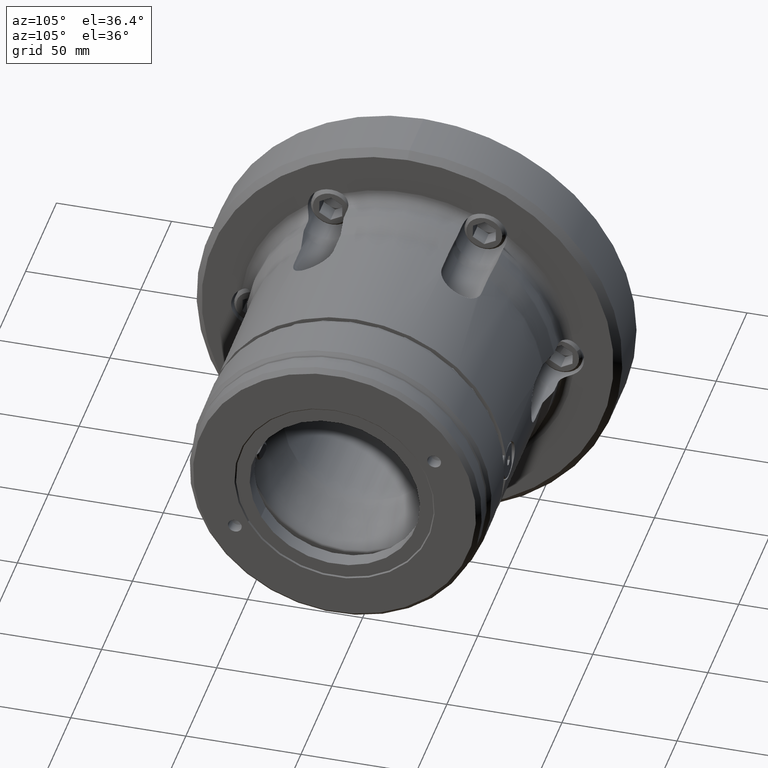
[diagram: clean part render]
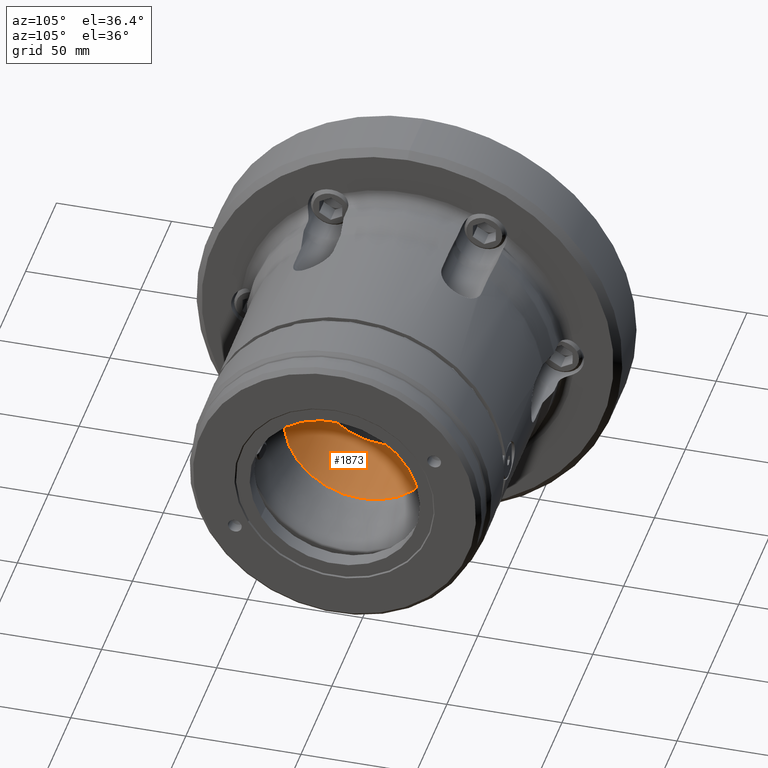
[diagram: same view with one face highlighted and labeled with its STEP entity id]
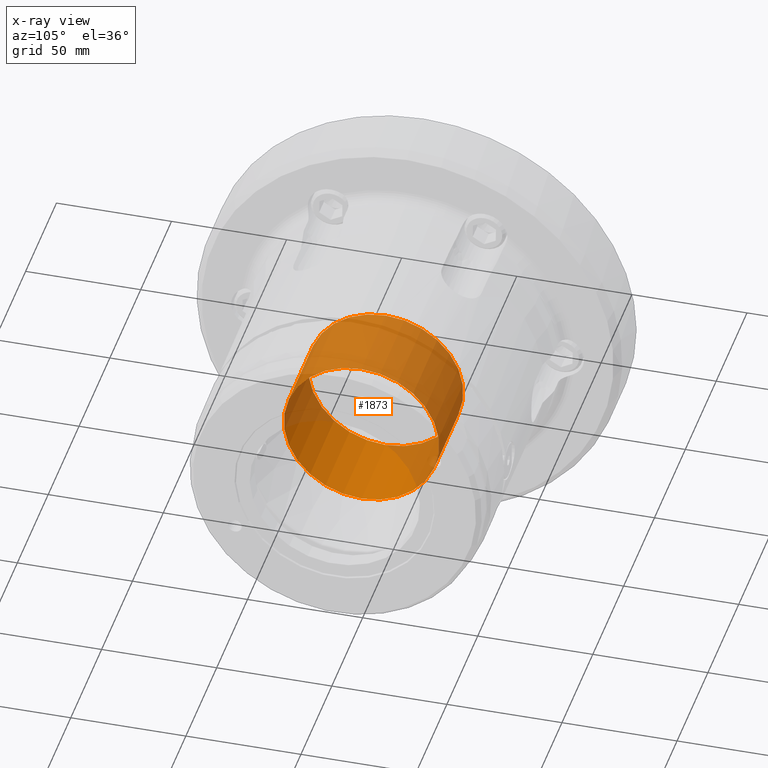
[diagram: x-ray of the same camera — body ghosted, the highlighted face saturated]
A machine part, auxiliary view. The second image highlights one B-rep face of the part: STEP entity #1873.
The next image is the same camera in x-ray: the body ghosted, the highlighted face saturated — about 65% of this face is hidden behind the body in this view.
In plain terms, the highlighted cylindrical surface (bore or boss wall) has radius 33.75 mm, axis along (-1, -0, -0).
Its self-contained STEP definition (entity closure, byte-faithful):
#368 = CIRCLE ( 'NONE', #4779, 33.75000000000000000 ) ;
#700 = DIRECTION ( 'NONE',  ( 0.0000000000000000000, 0.0000000000000000000, 1.000000000000000000 ) ) ;
#1434 = AXIS2_PLACEMENT_3D ( 'NONE', #6861, #6882, #6900 ) ;
#1700 = DIRECTION ( 'NONE',  ( -1.000000000000000000, -0.0000000000000000000, -0.0000000000000000000 ) ) ;
#1791 = CARTESIAN_POINT ( 'NONE',  ( 37.59903810567665516, 0.0000000000000000000, 33.75000000000000000 ) ) ;
#1873 = ADVANCED_FACE ( 'NONE', ( #6819, #6828 ), #6839, .F. ) ;
#1897 = EDGE_LOOP ( 'NONE', ( #5740 ) ) ;
#2387 = CIRCLE ( 'NONE', #6809, 33.75000000000000000 ) ;
#3229 = EDGE_LOOP ( 'NONE', ( #6328 ) ) ;
#3679 = CARTESIAN_POINT ( 'NONE',  ( 37.59903810567665516, 0.0000000000000000000, 0.0000000000000000000 ) ) ;
#4076 = DIRECTION ( 'NONE',  ( 0.0000000000000000000, 0.0000000000000000000, 1.000000000000000000 ) ) ;
#4092 = VERTEX_POINT ( 'NONE', #6520 ) ;
#4779 = AXIS2_PLACEMENT_3D ( 'NONE', #3679, #6112, #700 ) ;
#5740 = ORIENTED_EDGE ( 'NONE', *, *, #6259, .F. ) ;
#6112 = DIRECTION ( 'NONE',  ( -1.000000000000000000, -0.0000000000000000000, -0.0000000000000000000 ) ) ;
#6259 = EDGE_CURVE ( 'NONE', #4092, #4092, #2387, .T. ) ;
#6328 = ORIENTED_EDGE ( 'NONE', *, *, #7297, .T. ) ;
#6520 = CARTESIAN_POINT ( 'NONE',  ( 76.76257105830811156, 0.0000000000000000000, 33.75000000000000000 ) ) ;
#6809 = AXIS2_PLACEMENT_3D ( 'NONE', #7105, #1700, #4076 ) ;
#6819 = FACE_OUTER_BOUND ( 'NONE', #1897, .T. ) ;
#6828 = FACE_OUTER_BOUND ( 'NONE', #3229, .T. ) ;
#6839 = CYLINDRICAL_SURFACE ( 'NONE', #1434, 33.75000000000000000 ) ;
#6861 = CARTESIAN_POINT ( 'NONE',  ( 0.0000000000000000000, 0.0000000000000000000, 0.0000000000000000000 ) ) ;
#6882 = DIRECTION ( 'NONE',  ( -1.000000000000000000, -0.0000000000000000000, -0.0000000000000000000 ) ) ;
#6900 = DIRECTION ( 'NONE',  ( 0.0000000000000000000, 0.0000000000000000000, 1.000000000000000000 ) ) ;
#7105 = CARTESIAN_POINT ( 'NONE',  ( 76.76257105830811156, 0.0000000000000000000, 0.0000000000000000000 ) ) ;
#7209 = VERTEX_POINT ( 'NONE', #1791 ) ;
#7297 = EDGE_CURVE ( 'NONE', #7209, #7209, #368, .T. ) ;